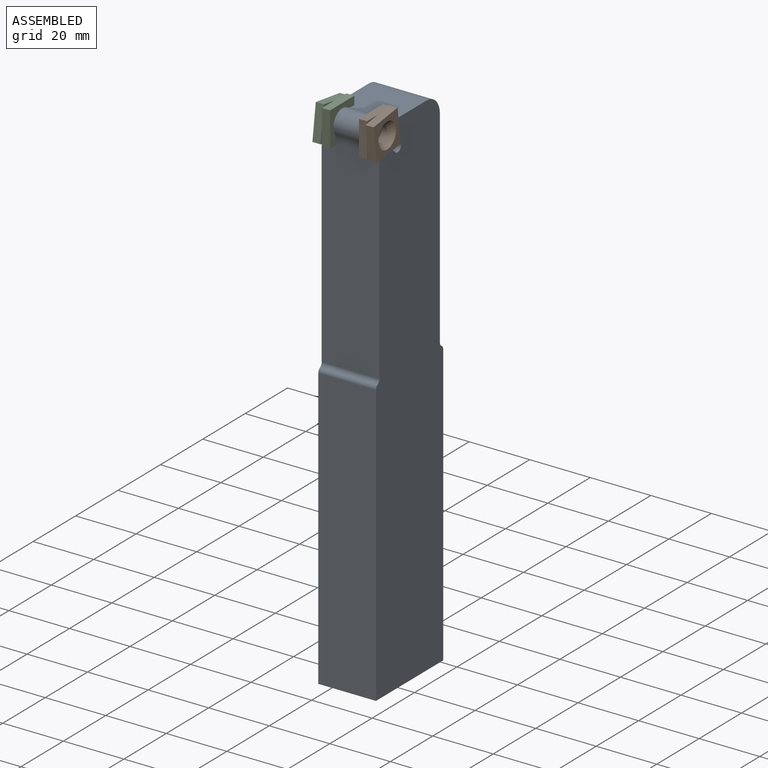
[diagram: assembled view]
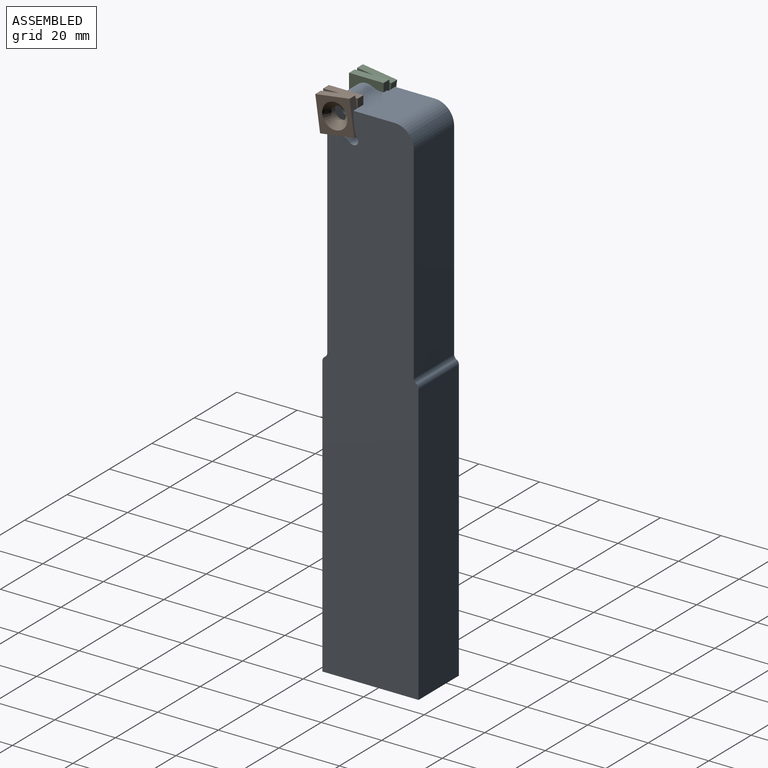
[diagram: assembled view, second angle]
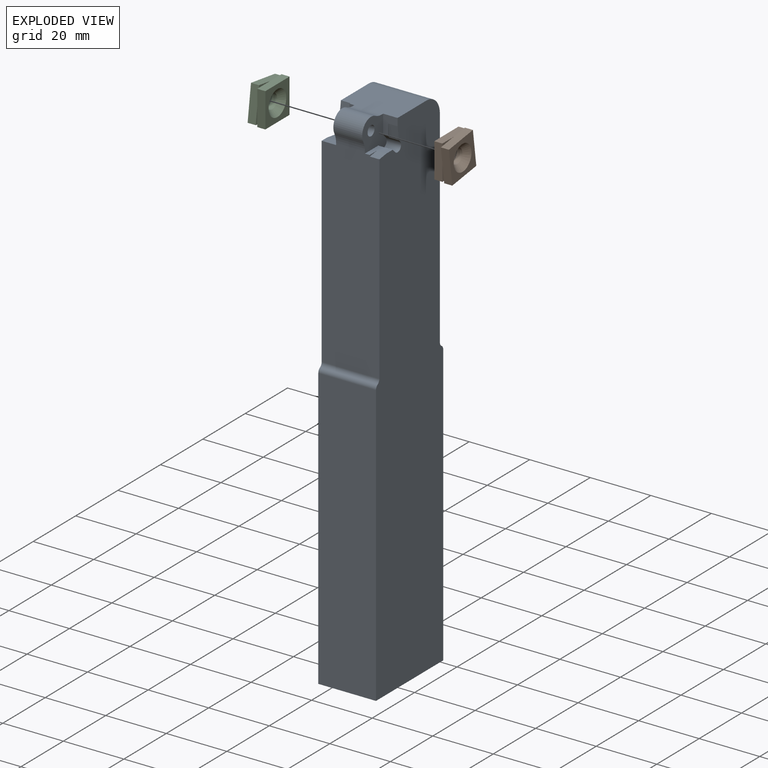
[diagram: exploded view]
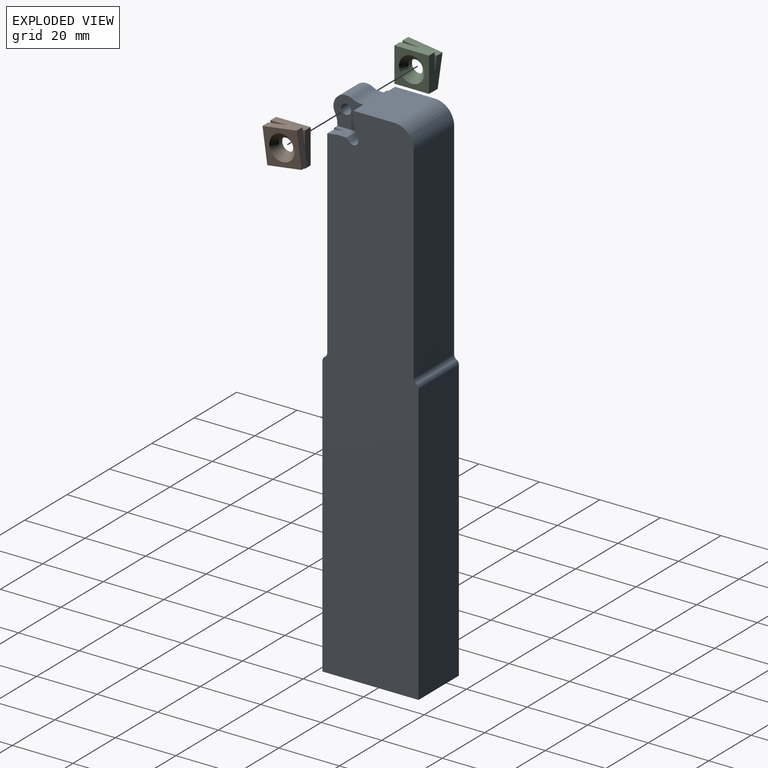
[diagram: exploded view, second angle]
ASSEMBLY  parts=3 mates=2
PART A: 41 faces, bbox 19.1x31.8x171.4 mm
  f0: plane 170.15x31.75mm, normal (1,0,0), area 5069.3mm2, adj f2,f4,f5,f6,f7,f8,f9,f14
  f1: plane 170.15x31.75mm, normal (-1,0,0), area 5069.3mm2, adj f2,f6,f7,f8,f9,f14,f15,f16
  f2: plane 19.05x14.27mm, normal (0,0,1), area 264.1mm2, adj f0,f1,f5,f19,f24,f28,f31,f34
  f3: cylinder r=1.65mm len=9.53mm, axis (1,0,0), area 98.7mm2, adj f19,f28
  f4: plane 6.28x4.76mm, normal (0,0,1), area 19.4mm2, adj f0,f6,f19,f22,f38,f39
  f5: plane 6.28x4.76mm, normal (0,-1,0), area 17.9mm2, adj f0,f2,f19,f21,f36,f37
  f6: plane 66.66x19.05mm, normal (0,-1,0), area 1262.1mm2, adj f0,f1,f4,f15,f19,f23,f28,f30
  f7: plane 92.79x19.05mm, normal (0,1,0), area 1767.7mm2, adj f0,f1,f9,f18
  f8: plane 92.79x19.05mm, normal (0,-1,0), area 1767.7mm2, adj f0,f1,f9,f17
  f9: plane 31.75x19.05mm, normal (0,0,-1), area 565.6mm2, adj f0,f1,f7,f8,f11,f13
  f10: cone r=0mm half-angle=59deg, axis (0,0,-1), area 22.9mm2, adj f11
  f11: cylinder r=2.5mm len=15.7mm, axis (0,0,-1), area 246.6mm2, adj f9,f10
  f12: cone r=0mm half-angle=59deg, axis (0,0,-1), area 22.9mm2, adj f13
  f13: cylinder r=2.5mm len=15.7mm, axis (0,0,-1), area 246.6mm2, adj f9,f12
  f14: plane 68.26x19.05mm, normal (0,1,0), area 1300.4mm2, adj f0,f1,f16,f40
  f15: cylinder r=1.59mm len=19.05mm, axis (-1,0,0), area 31.7mm2, adj f0,f1,f6,f17
  f16: cylinder r=1.59mm len=19.05mm, axis (-1,0,0), area 31.7mm2, adj f0,f1,f14,f18
  f17: cylinder r=1.59mm len=19.05mm, axis (-1,0,0), area 31.7mm2, adj f0,f1,f8,f15
  f18: cylinder r=1.59mm len=19.05mm, axis (-1,0,0), area 31.7mm2, adj f0,f1,f7,f16
  f19: plane 11.56x11.56mm, normal (1,0,0), area 84.1mm2, adj f2,f3,f4,f5,f6,f20,f21,f22
  f20: cylinder r=1.65mm len=4.76mm, axis (1,0,0), area 24.7mm2, adj f0,f19,f21,f22
  f21: plane 4.76x1.17mm, normal (0,-0.71,-0.71), area 5.1mm2, adj f0,f5,f19,f20,f36,f37
  f22: plane 4.76x1.17mm, normal (0,0.71,0.71), area 7.9mm2, adj f0,f4,f19,f20
  f23: plane 6.27x4.76mm, normal (0,0,1), area 17.9mm2, adj f1,f6,f27,f28,f32,f33
  f24: plane 6.29x4.76mm, normal (0,-1,0), area 19.5mm2, adj f1,f2,f25,f28,f34,f35
  f25: plane 4.76x1.16mm, normal (0,-0.7,-0.71), area 7.8mm2, adj f1,f24,f26,f28
  f26: cylinder r=1.65mm len=4.76mm, axis (-1,0,0), area 24.7mm2, adj f1,f25,f27,f28
  f27: plane 4.76x1.18mm, normal (0,0.7,0.71), area 5.2mm2, adj f1,f23,f26,f28,f32,f33
  f28: plane 11.56x11.56mm, normal (-1,0,0), area 84.1mm2, adj f2,f3,f6,f23,f24,f25,f26,f27
  f29: cylinder r=4.19mm len=9.53mm, axis (-1,0,0), area 102.6mm2, adj f19,f28,f30,f31
  f30: cylinder r=6.35mm len=9.53mm, axis (-1,0,0), area 30.2mm2, adj f6,f19,f28,f29
  f31: cylinder r=6.35mm len=9.53mm, axis (-1,0,0), area 30.2mm2, adj f2,f19,f28,f29
  f32: plane 4.39x0.62mm, normal (-1,0,0), area 1.2mm2, adj f23,f27,f33
  f33: plane 4.39x3.18mm, normal (0,0.14,0.99), area 14.1mm2, adj f1,f23,f27,f32
  f34: plane 3.3x3.18mm, normal (0,-0.99,0.14), area 10.6mm2, adj f1,f2,f24,f35
  f35: plane 3.3x0.46mm, normal (-1,0,0), area 0.8mm2, adj f2,f24,f34
  f36: plane 4.4x0.62mm, normal (1,0,0), area 1.2mm2, adj f5,f21,f37
  f37: plane 4.4x3.18mm, normal (0,-0.99,-0.14), area 14.1mm2, adj f0,f5,f21,f36
  f38: plane 3.3x3.18mm, normal (0,-0.14,0.99), area 10.6mm2, adj f0,f4,f6,f39
  f39: plane 3.3x0.46mm, normal (1,0,0), area 0.8mm2, adj f4,f6,f38
  f40: cylinder r=6.35mm len=19.05mm, axis (1,0,0), area 190mm2, adj f0,f1,f2,f14
PART B: 21 faces, bbox 5.3x12.9x12.9 mm
  f0: cylinder r=2.4mm len=4.8mm, axis (1,0,0), area 26.4mm2, adj f19,f20
  f1: plane 5.32x0.75mm, normal (-1,0,0), area 2mm2, adj f7,f8,f13
  f2: plane 5.32x0.75mm, normal (-1,0,0), area 2mm2, adj f5,f8,f16
  f3: plane 5.32x0.75mm, normal (-1,0,0), area 2mm2, adj f5,f6,f15
  f4: plane 5.32x0.75mm, normal (-1,0,0), area 2mm2, adj f6,f7,f14
  f5: plane 11.43x2.67mm, normal (0,0,-1), area 30.5mm2, adj f2,f3,f6,f8,f9,f10
  f6: plane 11.43x2.67mm, normal (0,1,0), area 30.5mm2, adj f3,f4,f5,f7,f9,f18
  f7: plane 11.43x2.67mm, normal (0,0,1), area 30.5mm2, adj f1,f4,f6,f8,f9,f12
  f8: plane 11.43x2.67mm, normal (0,-1,0), area 30.5mm2, adj f1,f2,f5,f7,f9,f11
  f9: plane 11.43x11.43mm, normal (1,0,0), area 75.5mm2, adj f5,f6,f7,f8,f19
  f10: plane 5.37x0.74mm, normal (1,0,0), area 2mm2, adj f5,f15,f16
  f11: plane 5.37x0.74mm, normal (1,0,0), area 2mm2, adj f8,f13,f16
  f12: plane 5.37x0.74mm, normal (1,0,0), area 2mm2, adj f7,f13,f14
  f13: plane 11.32x2.67mm, normal (0,-0.99,0.14), area 30.5mm2, adj f1,f11,f12,f14,f16,f17
  f14: plane 11.32x2.67mm, normal (0,0.14,0.99), area 30.5mm2, adj f4,f12,f13,f15,f17,f18
  f15: plane 11.32x2.67mm, normal (0,0.99,-0.14), area 30.5mm2, adj f3,f10,f14,f16,f17,f18
  f16: plane 11.32x2.67mm, normal (0,-0.14,-0.99), area 30.5mm2, adj f2,f10,f11,f13,f15,f17
  f17: plane 12.91x12.91mm, normal (-1,0,0), area 75.5mm2, adj f13,f14,f15,f16,f20
  f18: plane 5.37x0.74mm, normal (1,0,0), area 2mm2, adj f6,f14,f15
  f19: cone r=2.4mm half-angle=45deg, axis (1,0,0), area 52.4mm2, adj f0,f9
  f20: cone r=2.4mm half-angle=45deg, axis (-1,0,0), area 52.4mm2, adj f0,f17
PART C: same geometry as B
PLACE A t=(188.31,160.76,-57.55)mm fixed
PLACE B rot(axis=(0,-1,0),180deg) t=(195.74,149.38,158.63)mm
PLACE C t=(180.88,149.38,158.63)mm
MATE fastened C.f0 <-> A.f3  axis (1,0,0) through (183.55,149.38,158.63)mm
MATE fastened B.f0 <-> A.f3  axis (-1,0,0) through (193.07,149.38,158.63)mm
